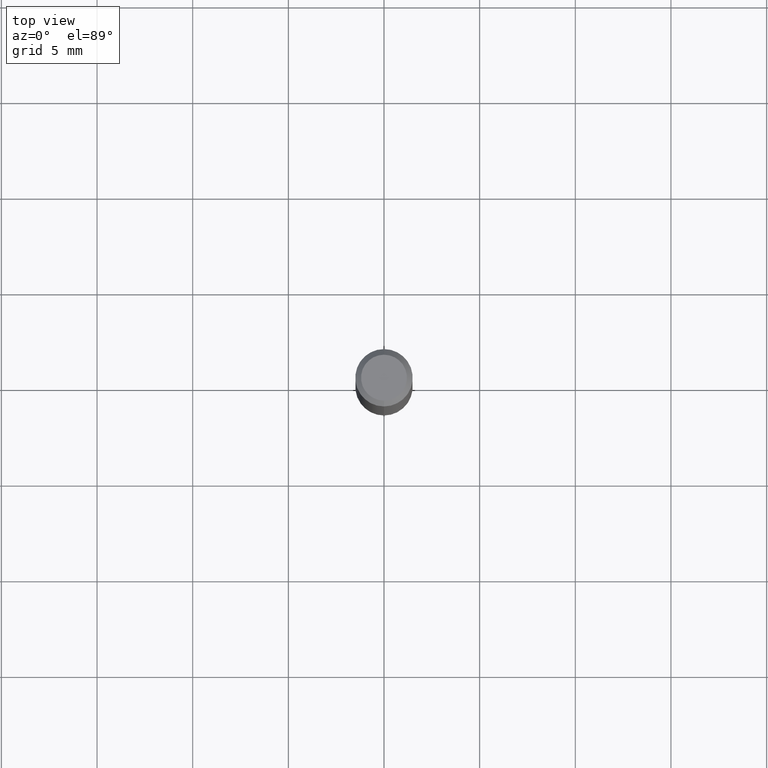
[diagram: clean part render]
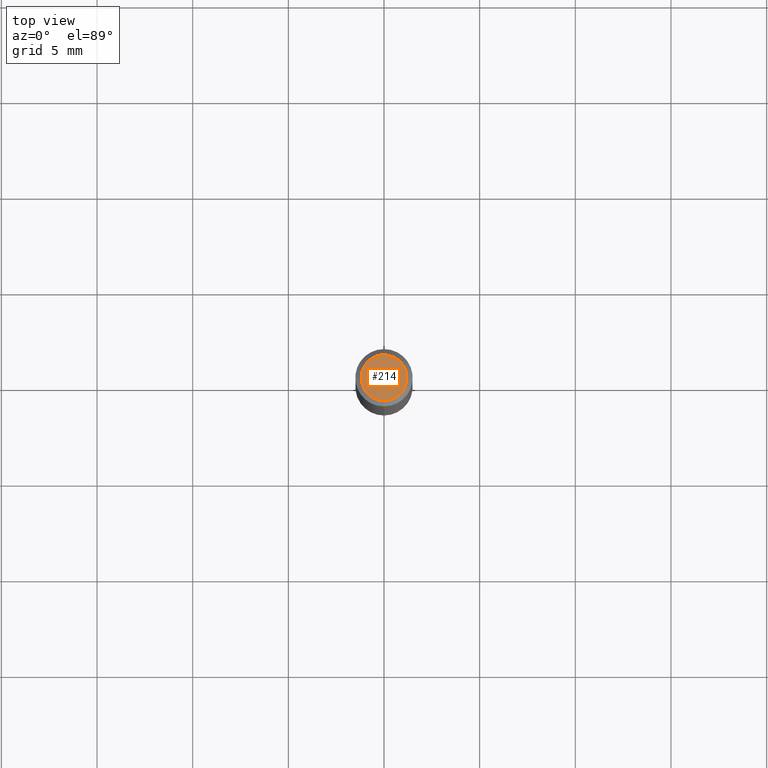
[diagram: same view with one face highlighted and labeled with its STEP entity id]
A machine part, top view. The second image highlights one B-rep face of the part: STEP entity #214.
In plain terms, the highlighted planar face has unit normal (-0, 0, 1).
Its self-contained STEP definition (entity closure, byte-faithful):
#142=VERTEX_POINT('',#323);
#160=EDGE_CURVE('',#142,#222,#344,.T.);
#208=EDGE_CURVE('',#222,#142,#398,.T.);
#214=ADVANCED_FACE('',(#405),#406,.T.);
#222=VERTEX_POINT('',#414);
#323=CARTESIAN_POINT('',(1.46952762458685E-016,-1.2,0.0));
#344=CIRCLE('',#550,1.2);
#398=CIRCLE('',#616,1.2);
#405=FACE_OUTER_BOUND('',#623,.T.);
#406=PLANE('',#624);
#414=CARTESIAN_POINT('',(0.0,1.2,0.0));
#550=AXIS2_PLACEMENT_3D('',#775,#776,#777);
#616=AXIS2_PLACEMENT_3D('',#848,#849,#850);
#623=EDGE_LOOP('',(#860,#861));
#624=AXIS2_PLACEMENT_3D('',#862,#863,#864);
#775=CARTESIAN_POINT('',(0.0,0.0,0.0));
#776=DIRECTION('',(0.0,0.0,-1.0));
#777=DIRECTION('',(0.0,1.0,0.0));
#848=CARTESIAN_POINT('',(0.0,0.0,0.0));
#849=DIRECTION('',(0.0,0.0,-1.0));
#850=DIRECTION('',(0.0,1.0,0.0));
#860=ORIENTED_EDGE('',*,*,#208,.F.);
#861=ORIENTED_EDGE('',*,*,#160,.F.);
#862=CARTESIAN_POINT('',(0.0,0.6,0.0));
#863=DIRECTION('',(-0.0,0.0,1.0));
#864=DIRECTION('',(0.0,-1.0,0.0));